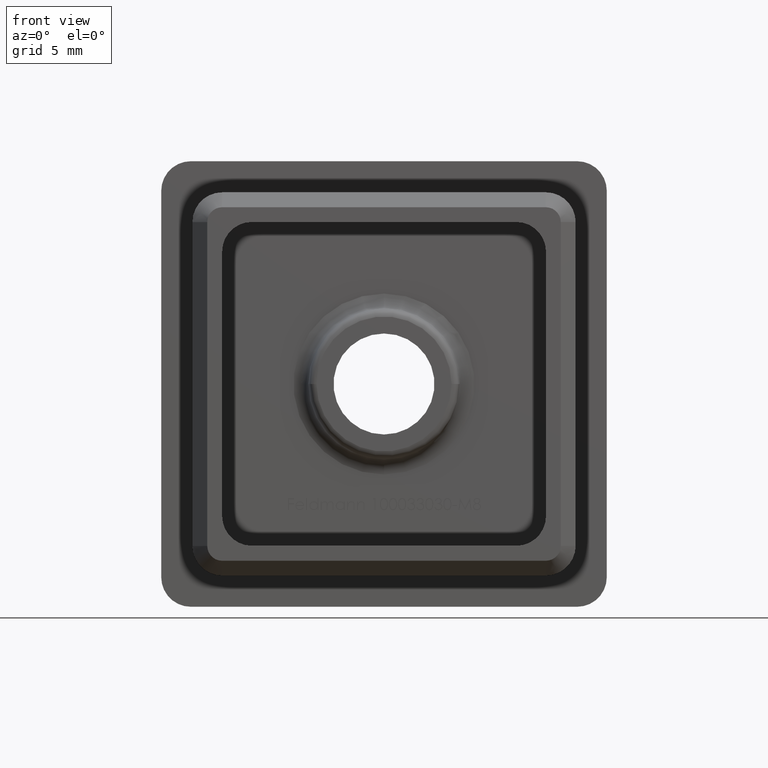
[diagram: clean part render]
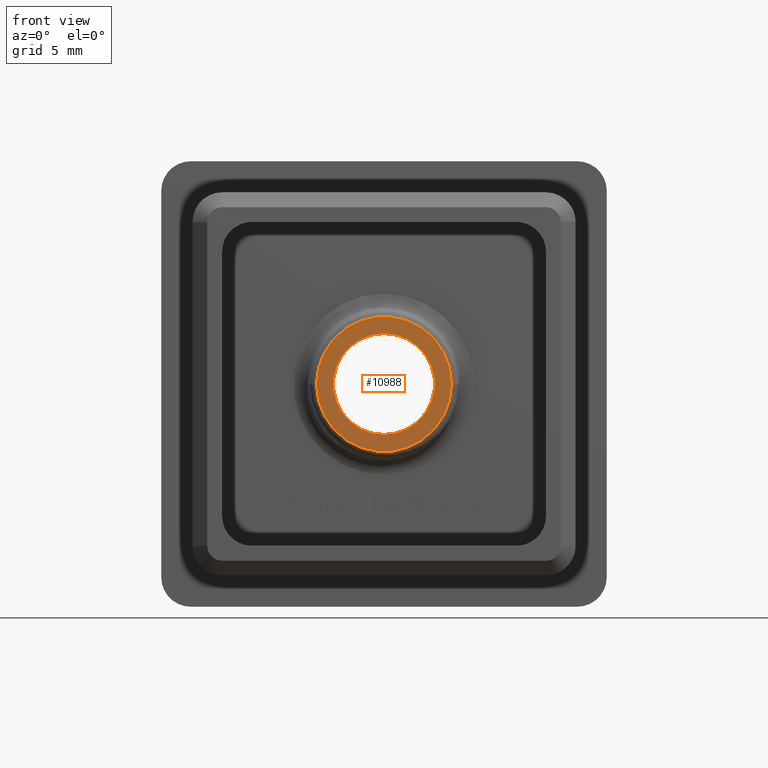
[diagram: same view with one face highlighted and labeled with its STEP entity id]
A machine part, front view. The second image highlights one B-rep face of the part: STEP entity #10988.
In plain terms, the highlighted planar face has unit normal (-0, 1, 0).
Its self-contained STEP definition (entity closure, byte-faithful):
#95 = CARTESIAN_POINT ( 'NONE',  ( 4.541834412991284400, -2.000000000000000000, 5.867139638213479300E-016 ) ) ;
#1503 = CARTESIAN_POINT ( 'NONE',  ( 2.449293598294706900E-016, -2.000000000000000400, 0.0000000000000000000 ) ) ;
#1833 = CARTESIAN_POINT ( 'NONE',  ( 2.449293598294707400E-016, -2.000000000000000400, -3.399999999999996800 ) ) ;
#2449 = AXIS2_PLACEMENT_3D ( 'NONE', #16723, #9609, #6712 ) ;
#2656 = CARTESIAN_POINT ( 'NONE',  ( -4.541834412991284400, -2.000000000000000900, 0.0000000000000000000 ) ) ;
#3830 = DIRECTION ( 'NONE',  ( -1.000000000000000000, -1.224646799147353500E-016, 0.0000000000000000000 ) ) ;
#4177 = CIRCLE ( 'NONE', #4555, 3.399999999999996800 ) ;
#4218 = CARTESIAN_POINT ( 'NONE',  ( 2.449293598294707400E-016, -2.000000000000000400, 0.0000000000000000000 ) ) ;
#4555 = AXIS2_PLACEMENT_3D ( 'NONE', #7613, #13435, #7741 ) ;
#6661 = CARTESIAN_POINT ( 'NONE',  ( 2.449293598294707400E-016, -2.000000000000000400, 0.0000000000000000000 ) ) ;
#6671 = VERTEX_POINT ( 'NONE', #95 ) ;
#6712 = DIRECTION ( 'NONE',  ( -1.000000000000000000, -9.548583888345160900E-017, 0.0000000000000000000 ) ) ;
#7613 = CARTESIAN_POINT ( 'NONE',  ( 2.449293598294707400E-016, -2.000000000000000400, 0.0000000000000000000 ) ) ;
#7741 = DIRECTION ( 'NONE',  ( 0.0000000000000000000, 0.0000000000000000000, -1.000000000000000000 ) ) ;
#8591 = CIRCLE ( 'NONE', #11129, 3.399999999999996800 ) ;
#9316 = VERTEX_POINT ( 'NONE', #14571 ) ;
#9609 = DIRECTION ( 'NONE',  ( 1.224646799147353500E-016, -1.000000000000000000, 0.0000000000000000000 ) ) ;
#9774 = EDGE_CURVE ( 'NONE', #10669, #6671, #17197, .T. ) ;
#9960 = EDGE_CURVE ( 'NONE', #6671, #10669, #10528, .T. ) ;
#10528 = CIRCLE ( 'NONE', #12689, 4.541834412991284400 ) ;
#10669 = VERTEX_POINT ( 'NONE', #2656 ) ;
#10988 = ADVANCED_FACE ( 'NONE', ( #16727, #12529 ), #16559, .F. ) ;
#11129 = AXIS2_PLACEMENT_3D ( 'NONE', #4218, #16942, #11214 ) ;
#11214 = DIRECTION ( 'NONE',  ( 0.0000000000000000000, 0.0000000000000000000, -1.000000000000000000 ) ) ;
#11346 = AXIS2_PLACEMENT_3D ( 'NONE', #6661, #15361, #3830 ) ;
#11487 = DIRECTION ( 'NONE',  ( -1.000000000000000000, -9.548583888345160900E-017, 0.0000000000000000000 ) ) ;
#11563 = VERTEX_POINT ( 'NONE', #1833 ) ;
#11726 = ORIENTED_EDGE ( 'NONE', *, *, #9960, .T. ) ;
#12529 = FACE_OUTER_BOUND ( 'NONE', #13345, .T. ) ;
#12689 = AXIS2_PLACEMENT_3D ( 'NONE', #1503, #18354, #11487 ) ;
#12778 = EDGE_CURVE ( 'NONE', #11563, #9316, #4177, .T. ) ;
#13345 = EDGE_LOOP ( 'NONE', ( #16602, #11726 ) ) ;
#13435 = DIRECTION ( 'NONE',  ( -0.0000000000000000000, -1.000000000000000000, -0.0000000000000000000 ) ) ;
#14571 = CARTESIAN_POINT ( 'NONE',  ( 6.613092715395704500E-016, -2.000000000000000400, 3.399999999999997200 ) ) ;
#15361 = DIRECTION ( 'NONE',  ( -1.224646799147353500E-016, 1.000000000000000000, 0.0000000000000000000 ) ) ;
#15492 = ORIENTED_EDGE ( 'NONE', *, *, #15725, .F. ) ;
#15725 = EDGE_CURVE ( 'NONE', #9316, #11563, #8591, .T. ) ;
#16088 = ORIENTED_EDGE ( 'NONE', *, *, #12778, .F. ) ;
#16559 = PLANE ( 'NONE',  #11346 ) ;
#16602 = ORIENTED_EDGE ( 'NONE', *, *, #9774, .T. ) ;
#16723 = CARTESIAN_POINT ( 'NONE',  ( 2.449293598294706900E-016, -2.000000000000000400, 0.0000000000000000000 ) ) ;
#16727 = FACE_BOUND ( 'NONE', #18082, .T. ) ;
#16942 = DIRECTION ( 'NONE',  ( -0.0000000000000000000, -1.000000000000000000, -0.0000000000000000000 ) ) ;
#17197 = CIRCLE ( 'NONE', #2449, 4.541834412991284400 ) ;
#18082 = EDGE_LOOP ( 'NONE', ( #16088, #15492 ) ) ;
#18354 = DIRECTION ( 'NONE',  ( 1.224646799147353500E-016, -1.000000000000000000, 0.0000000000000000000 ) ) ;